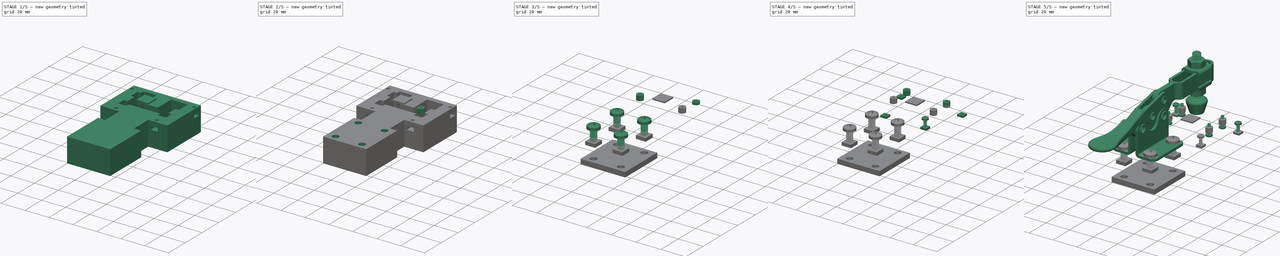
[diagram: build sequence overview — one tinted view per stage of 5, left to right]
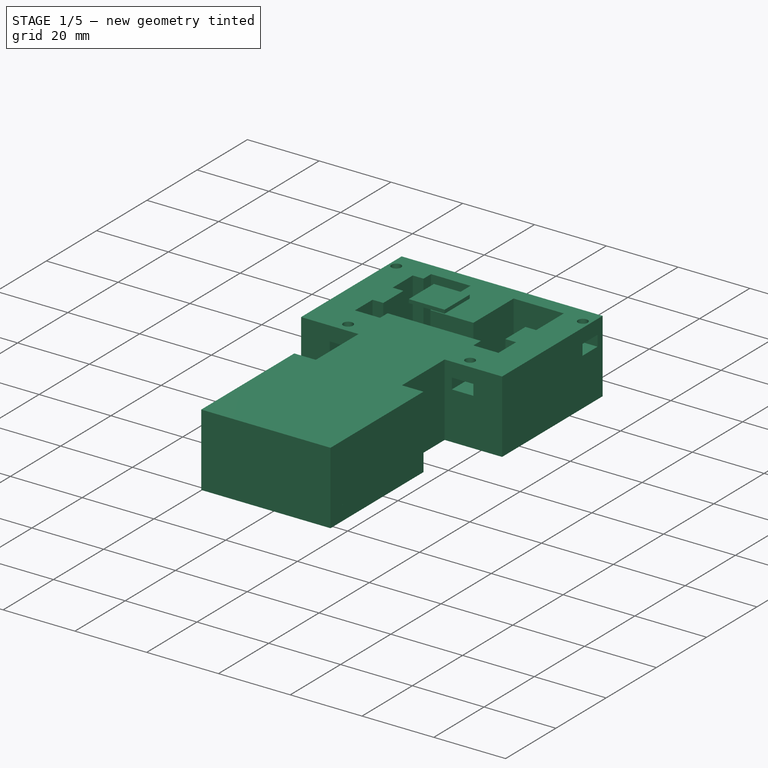
[diagram: stage 1 of 5 — iso view after this stage's code; geometry added in this stage tinted green]
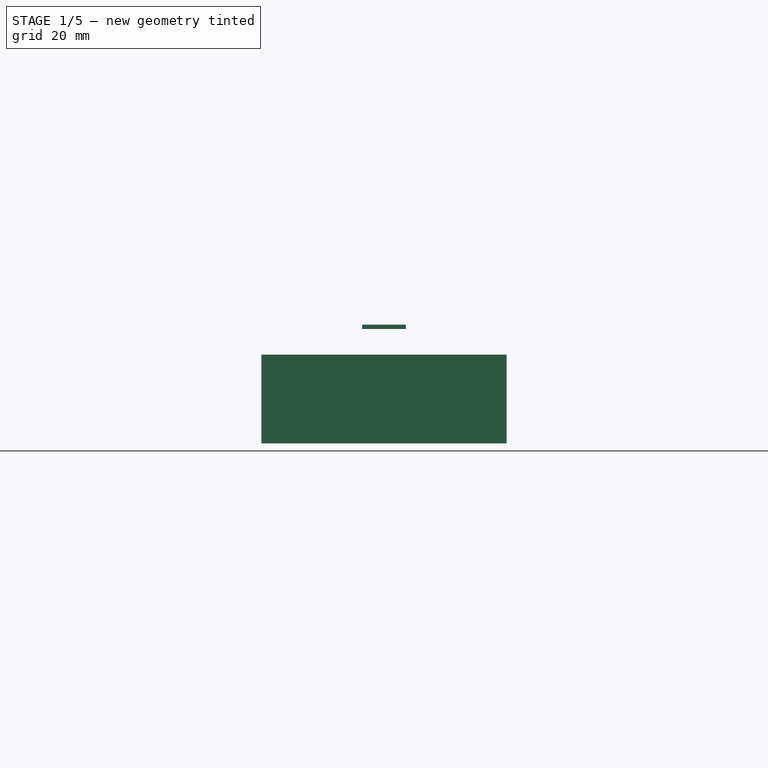
[diagram: stage 1 of 5 — front view after this stage's code; geometry added in this stage tinted green]
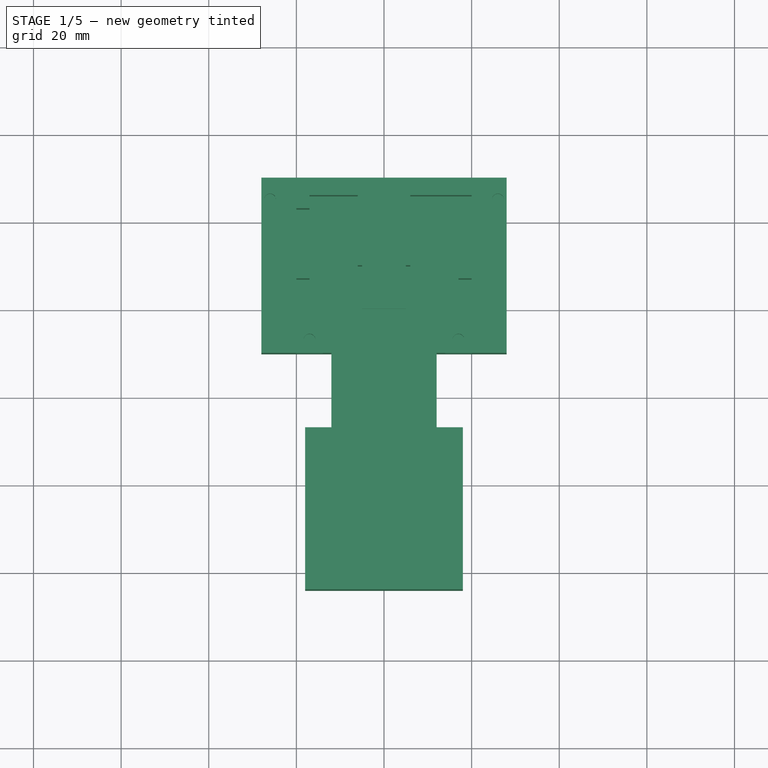
[diagram: stage 1 of 5 — top view after this stage's code; geometry added in this stage tinted green]
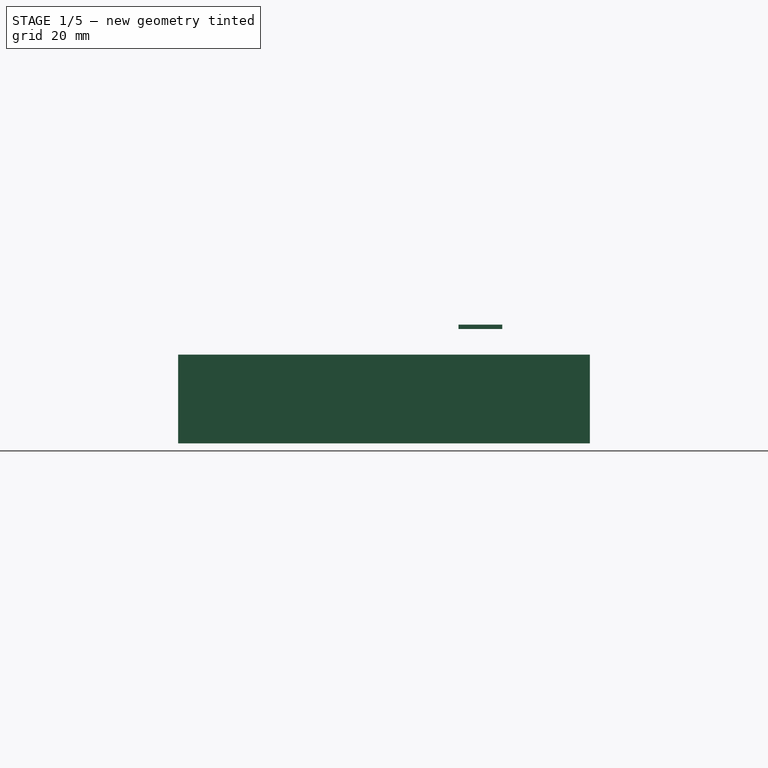
[diagram: stage 1 of 5 — right view after this stage's code; geometry added in this stage tinted green]
FCSTD DOCUMENT  (FreeCAD 0.17R13541 (Git))
Label: jig
License: All rights reserved
LicenseURL: http://en.wikipedia.org/wiki/All_rights_reserved
objects: Part::Feature×31, Part::FeaturePython×28, App::DocumentObjectGroupPython×16, Sketcher::SketchObject×11, PartDesign::Pocket×9, App::DocumentObjectGroup×4, PartDesign::Pad×2, PartDesign::Body×2, App::VRMLObject×2, Part::Compound×1, Spreadsheet::Sheet×1, Part::Box×1
note: 96 computed .brp shape members not serialized (recipe doc carries the construction recipe); baked Part::Feature solids carry a one-line shape summary decoded from their .brp

FEATURE [Sketcher::SketchObject] Sketch
  MapMode = 5
  Support = -> [XY_Plane]
  expr: Constraints[31] = Spreadsheet.ClampPos
  expr: Constraints[29] = Spreadsheet.ClampBaseX
  expr: Constraints[6] = 40 + 8 * 2
  sketch-geometry (12):
    g0: LineSegment StartX=28 StartY=30 StartZ=0 EndX=28 EndY=-10 EndZ=0
    g1: LineSegment StartX=28 StartY=-10 StartZ=0 EndX=12 EndY=-10 EndZ=0
    g2: LineSegment StartX=-28 StartY=-10 StartZ=0 EndX=-28 EndY=30 EndZ=0
    g3: LineSegment StartX=-12 StartY=-10 StartZ=0 EndX=-12 EndY=-27 EndZ=0
    g4: LineSegment StartX=-12 StartY=-27 StartZ=0 EndX=-18 EndY=-27 EndZ=0
    g5: LineSegment StartX=-18 StartY=-27 StartZ=0 EndX=-18 EndY=-64 EndZ=0
    g6: LineSegment StartX=-18 StartY=-64 StartZ=0 EndX=18 EndY=-64 EndZ=0
    g7: LineSegment StartX=18 StartY=-64 StartZ=0 EndX=18 EndY=-27 EndZ=0
    g8: LineSegment StartX=12 StartY=-27 StartZ=0 EndX=18 EndY=-27 EndZ=0
    g9: LineSegment StartX=12 StartY=-27 StartZ=0 EndX=12 EndY=-10 EndZ=0
    g10: LineSegment StartX=-12 StartY=-10 StartZ=0 EndX=-28 EndY=-10 EndZ=0
    g11: LineSegment StartX=-28 StartY=30 StartZ=0 EndX=28 EndY=30 EndZ=0
  constraints (35):
    c: Coincident(g0,g1)
    c: Coincident(g10,g2)
    c: Horizontal(g1)
    c: Vertical(g0)
    c: Vertical(g2)
    c: Symmetric(g2,g0,g-2)
    c: DistanceX(g2,g0) = 56
    c: DistanceY(g2,g2) = 40
    c: DistanceY(g0) = -10
    c: Vertical(g3)
    c: Coincident(g4,g3)
    c: Horizontal(g4)
    c: Vertical(g5)
    c: Coincident(g6,g5)
    c: Horizontal(g6)
    c: Vertical(g7)
    c: Horizontal(g8)
    c: Vertical(g9)
    c: Coincident(g1,g9)
    c: Coincident(g10,g3)
    c: Tangent(g1,g10)
    c: Symmetric(g3,g1,g-2)
    c: Coincident(g6,g7)
    c: Coincident(g7,g8)
    c: Coincident(g8,g9)
    c: Coincident(g5,g4)
    c: Horizontal(g3,g8)
    c: Equal(g8,g4)
    c: DistanceX(g3,g8) = 24
    c: DistanceX(g6,g6) = 36
    c: DistanceY(g7,g7) = 37
    c: DistanceY(g9,g9) = 17
    c: Coincident(g11,g0)
    c: Horizontal(g11)
    c: Coincident(g11,g2)
FEATURE [PartDesign::Pad] Pad
  Length = 20.25
  Length2 = 100
  Profile = -> Sketch
  Type = 0
  expr: Length = 15.25 + 5
FEATURE [Sketcher::SketchObject] Sketch001
  MapMode = 5
  Placement = pos=(0,0,20.25) rot=(0,0,1;0rad)
  Support = -> [Pad]
  sketch-geometry (22):
    g0: LineSegment StartX=20 StartY=0 StartZ=0 EndX=13 EndY=0 EndZ=0
    g1: LineSegment StartX=-20 StartY=0 StartZ=0 EndX=-20 EndY=7 EndZ=0
    g2: LineSegment StartX=-20 StartY=7 StartZ=0 EndX=-17 EndY=7 EndZ=0
    g3: LineSegment StartX=-17 StartY=15 StartZ=0 EndX=-20 EndY=15 EndZ=0
    g4: LineSegment StartX=-20 StartY=15 StartZ=0 EndX=-20 EndY=23 EndZ=0
    g5: LineSegment StartX=-20 StartY=23 StartZ=0 EndX=-17 EndY=23 EndZ=0
    g6: LineSegment StartX=20 StartY=26 StartZ=0 EndX=20 EndY=15 EndZ=0
    g7: LineSegment StartX=20 StartY=15 StartZ=0 EndX=17 EndY=15 EndZ=0
    g8: LineSegment StartX=17 StartY=7 StartZ=0 EndX=20 EndY=7 EndZ=0
    g9: LineSegment StartX=20 StartY=7 StartZ=0 EndX=20 EndY=0 EndZ=0
    g10: LineSegment StartX=-17 StartY=23 StartZ=0 EndX=-17 EndY=26 EndZ=0
    g11: LineSegment StartX=-17 StartY=7 StartZ=0 EndX=-17 EndY=15 EndZ=0
    g12: LineSegment StartX=17 StartY=15 StartZ=0 EndX=17 EndY=7 EndZ=0
    g13: LineSegment StartX=-17 StartY=26 StartZ=0 EndX=-6 EndY=26 EndZ=0
    g14: LineSegment StartX=-13 StartY=0 StartZ=0 EndX=-13 EndY=3 EndZ=0
    g15: LineSegment StartX=-13 StartY=3 StartZ=0 EndX=13 EndY=3 EndZ=0
    g16: LineSegment StartX=13 StartY=3 StartZ=0 EndX=13 EndY=0 EndZ=0
    g17: LineSegment StartX=-13 StartY=0 StartZ=0 EndX=-20 EndY=0 EndZ=0
    g18: LineSegment StartX=6 StartY=26 StartZ=0 EndX=6 EndY=10 EndZ=0
    g19: LineSegment StartX=6 StartY=10 StartZ=0 EndX=-6 EndY=10 EndZ=0
    g20: LineSegment StartX=-6 StartY=10 StartZ=0 EndX=-6 EndY=26 EndZ=0
    g21: LineSegment StartX=6 StartY=26 StartZ=0 EndX=20 EndY=26 EndZ=0
  constraints (64):
    c: Horizontal(g0)
    c: Vertical(g1)
    c: Horizontal(g2)
    c: Vertical(g4)
    c: Vertical(g6)
    c: Horizontal(g8)
    c: Vertical(g9)
    c: Horizontal(g7)
    c: Coincident(g7,g6)
    c: Coincident(g9,g8)
    c: Coincident(g1,g2)
    c: Coincident(g4,g5)
    c: Coincident(g4,g3)
    c: Horizontal(g5)
    c: Horizontal(g3)
    c: Coincident(g11,g3)
    c: Coincident(g10,g5)
    c: Coincident(g11,g2)
    c: Coincident(g17,g1)
    c: Coincident(g12,g8)
    c: Coincident(g12,g7)
    c: Coincident(g0,g9)
    c: PointOnObject(g3,g10)
    c: Vertical(g10)
    c: Vertical(g11)
    c: Equal(g8,g2)
    c: DistanceY(g1,g1) = 7
    c: Equal(g9,g1)
    c: DistanceX(g2,g2) = 3
    c: Equal(g2,g3)
    c: Equal(g8,g7)
    c: DistanceY(g0) = 0
    c: DistanceY(g11,g11) = 8
    c: DistanceY(g4,g4) = 8
    c: Equal(g11,g12)
    c: DistanceY(g6,g6) = 11
    c: Horizontal(g13)
    c: Coincident(g10,g13)
    c: Vertical(g12)
    c: Coincident(g21,g6)
    c: Symmetric(g17,g0,g-2)
    c: DistanceX(g17,g0) = 40
    c: Coincident(g15,g14)
    c: Horizontal(g15)
    c: Coincident(g16,g15)
    c: Vertical(g14)
    c: Coincident(g0,g16)
    c: Coincident(g17,g14)
    c: Tangent(g0,g17)
    c: DistanceX(g17,g17) = 7
    c: DistanceX(g0,g0) = 7
    c: Vertical(g16)
    c: DistanceY(g16,g16) = 3
    c: Coincident(g18,g19)
    c: Coincident(g19,g20)
    c: Horizontal(g19)
    c: Vertical(g18)
    c: Vertical(g20)
    c: DistanceY(g19) = 10
    c: Symmetric(g18,g19,g-2)
    c: DistanceX(g19,g19) = 12
    c: Coincident(g13,g20)
    c: Coincident(g21,g18)
    c: Tangent(g13,g21)
FEATURE [PartDesign::Pocket] Pocket
  BaseFeature = -> Pad
  Length = 17
  Length2 = 100
  Profile = -> Sketch001
  Type = 0
FEATURE [Sketcher::SketchObject] Sketch002
  MapMode = 5
  Placement = pos=(0,0,20.25) rot=(0,0,1;0rad)
  Support = -> [Pocket]
  expr: Constraints[3] = 2.7000000000000002 / 2
  sketch-geometry (4):
    g0: Circle CenterX=-17 CenterY=-7 CenterZ=0 NormalX=0 NormalY=0 NormalZ=1 AngleXU=0 Radius=1.35
    g1: Circle CenterX=17 CenterY=-7 CenterZ=0 NormalX=0 NormalY=0 NormalZ=1 AngleXU=0 Radius=1.35
    g2: Circle CenterX=26 CenterY=25 CenterZ=0 NormalX=0 NormalY=0 NormalZ=1 AngleXU=0 Radius=1.35
    g3: Circle CenterX=-26 CenterY=25 CenterZ=0 NormalX=0 NormalY=0 NormalZ=1 AngleXU=0 Radius=1.35
  constraints (11):
    c: Equal(g3,g2)
    c: Equal(g2,g1)
    c: Equal(g1,g0)
    c: Radius(g0) = 1.35
    c: DistanceY(g0) = -7
    c: Horizontal(g1,g0)
    c: DistanceX(g0,g1) = 34
    c: Symmetric(g0,g1,g-2)
    c: Symmetric(g3,g2,g-2)
    c: DistanceX(g3,g2) = 52
    c: DistanceY(g2) = 25
FEATURE [PartDesign::Pocket] Pocket001
  BaseFeature = -> Pocket
  Length = 5
  Length2 = 100
  Profile = -> Sketch002
  Type = 0
FEATURE [Sketcher::SketchObject] Sketch003
  ExternalGeometry = -> [Pocket001]
  MapMode = 5
  Placement = pos=(28,0,0) rot=(0.57735,0.57735,0.57735;2.0944rad)
  Support = -> [Pocket001]
  sketch-geometry (4):
    g0: LineSegment StartX=22 StartY=16.25 StartZ=0 EndX=28 EndY=16.25 EndZ=0
    g1: LineSegment StartX=28 StartY=16.25 StartZ=0 EndX=28 EndY=13.25 EndZ=0
    g2: LineSegment StartX=28 StartY=13.25 StartZ=0 EndX=22 EndY=13.25 EndZ=0
    g3: LineSegment StartX=22 StartY=13.25 StartZ=0 EndX=22 EndY=16.25 EndZ=0
  constraints (12):
    c: Coincident(g0,g1)
    c: Coincident(g1,g2)
    c: Coincident(g2,g3)
    c: Coincident(g3,g0)
    c: Horizontal(g0)
    c: Horizontal(g2)
    c: Vertical(g1)
    c: Vertical(g3)
    c: DistanceX(g2,g2) = 6
    c: DistanceY(g1,g1) = 3
    c: DistanceX(g2) = 22
    c: DistanceY(g0,g-3) = 4
FEATURE [PartDesign::Pocket] Pocket002
  BaseFeature = -> Pocket001
  Length = 5
  Length2 = 100
  Profile = -> Sketch003
  Type = 0
FEATURE [Sketcher::SketchObject] Sketch004
  ExternalGeometry = -> [Pocket001]
  MapMode = 5
  Placement = pos=(-28,0,0) rot=(0.57735,0.57735,0.57735;2.0944rad)
  Support = -> [Pocket002]
  sketch-geometry (4):
    g0: LineSegment StartX=22 StartY=16.25 StartZ=0 EndX=28 EndY=16.25 EndZ=0
    g1: LineSegment StartX=28 StartY=16.25 StartZ=0 EndX=28 EndY=13.25 EndZ=0
    g2: LineSegment StartX=28 StartY=13.25 StartZ=0 EndX=22 EndY=13.25 EndZ=0
    g3: LineSegment StartX=22 StartY=13.25 StartZ=0 EndX=22 EndY=16.25 EndZ=0
  constraints (12):
    c: Coincident(g0,g1)
    c: Coincident(g1,g2)
    c: Coincident(g2,g3)
    c: Coincident(g3,g0)
    c: Horizontal(g0)
    c: Horizontal(g2)
    c: Vertical(g1)
    c: Vertical(g3)
    c: DistanceX(g2,g2) = 6
    c: DistanceY(g1,g1) = 3
    c: DistanceX(g2) = 22
    c: DistanceY(g0,g-3) = 4
FEATURE [PartDesign::Pocket] Pocket003
  BaseFeature = -> Pocket002
  Length = 5
  Length2 = 100
  Profile = -> Sketch004
  Reversed = true
  Type = 0
FEATURE [Sketcher::SketchObject] Sketch005
  ExternalGeometry = -> [Pocket003]
  MapMode = 5
  Placement = pos=(0,-10,0) rot=(1,0,0;1.5708rad)
  Support = -> [Pocket003]
  sketch-geometry (8):
    g0: LineSegment StartX=-20 StartY=16.25 StartZ=0 EndX=-14 EndY=16.25 EndZ=0
    g1: LineSegment StartX=-14 StartY=16.25 StartZ=0 EndX=-14 EndY=13.25 EndZ=0
    g2: LineSegment StartX=-14 StartY=13.25 StartZ=0 EndX=-20 EndY=13.25 EndZ=0
    g3: LineSegment StartX=-20 StartY=13.25 StartZ=0 EndX=-20 EndY=16.25 EndZ=0
    g4: LineSegment StartX=14 StartY=16.25 StartZ=0 EndX=20 EndY=16.25 EndZ=0
    g5: LineSegment StartX=20 StartY=16.25 StartZ=0 EndX=20 EndY=13.25 EndZ=0
    g6: LineSegment StartX=20 StartY=13.25 StartZ=0 EndX=14 EndY=13.25 EndZ=0
    g7: LineSegment StartX=14 StartY=13.25 StartZ=0 EndX=14 EndY=16.25 EndZ=0
  constraints (24):
    c: Coincident(g0,g1)
    c: Coincident(g1,g2)
    c: Coincident(g2,g3)
    c: Coincident(g3,g0)
    c: Horizontal(g0)
    c: Horizontal(g2)
    c: Vertical(g1)
    c: Vertical(g3)
    c: Coincident(g4,g5)
    c: Coincident(g5,g6)
    c: Coincident(g6,g7)
    c: Coincident(g7,g4)
    c: Horizontal(g4)
    c: Horizontal(g6)
    c: Vertical(g5)
    c: Vertical(g7)
    c: Equal(g1,g7)
    c: Horizontal(g0,g4)
    c: DistanceY(g5,g5) = 3
    c: Equal(g2,g6)
    c: DistanceX(g6,g6) = 6
    c: DistanceY(g0,g-3) = 4
    c: DistanceX(g0) = -14
    c: Symmetric(g0,g4,g-2)
FEATURE [PartDesign::Pocket] Pocket004
  BaseFeature = -> Pocket003
  Length = 6
  Length2 = 100
  Profile = -> Sketch005
  Type = 0
FEATURE [App::DocumentObjectGroup] Group001  label="PCB Fasteners"
  Group = -> [Screw,Screw001,Screw002,Screw003,Screw004,Screw005,Screw006,Screw007,Nut,Nut001,Nut002,Nut003]
FEATURE [App::DocumentObjectGroup] Group003  label="Clamp Fasteners"
  Group = -> [Screw008,Screw009,Screw010,Screw011,Nut010,Nut011,Nut012,Nut013]
FEATURE [Sketcher::SketchObject] Sketch009
  MapMode = 5
  Support = -> [XY_Plane001]
  expr: Constraints[10] = Spreadsheet.ClampBaseX
  expr: Constraints[9] = Spreadsheet.ClampBaseY
  expr: Constraints[8] = -Spreadsheet.ClampPos - 10mm
  sketch-geometry (4):
    g0: LineSegment StartX=-18 StartY=-27 StartZ=0 EndX=18 EndY=-27 EndZ=0
    g1: LineSegment StartX=18 StartY=-27 StartZ=0 EndX=18 EndY=-64 EndZ=0
    g2: LineSegment StartX=18 StartY=-64 StartZ=0 EndX=-18 EndY=-64 EndZ=0
    g3: LineSegment StartX=-18 StartY=-64 StartZ=0 EndX=-18 EndY=-27 EndZ=0
  constraints (12):
    c: Coincident(g0,g1)
    c: Coincident(g1,g2)
    c: Coincident(g2,g3)
    c: Coincident(g3,g0)
    c: Horizontal(g0)
    c: Horizontal(g2)
    c: Vertical(g1)
    c: Vertical(g3)
    c: DistanceY(g0) = -27
    c: DistanceY(g1,g1) = 37
    c: DistanceX(g2,g2) = 36
    c: Symmetric(g0,g0,g-2)
FEATURE [PartDesign::Pad] Pad001
  Length = 4
  Length2 = 100
  Profile = -> Sketch009
  Type = 0
  expr: Length = Spreadsheet.ClampBaseHeight
FEATURE [PartDesign::Body] Body001  label="ClampSpacer"
  Group = -> [Sketch009,Pad001,Sketch010,Pocket008]
  Origin = -> Origin001
  Placement = pos=(0,0,20.25) rot=(0,0,1;0rad)
  Tip = -> Pocket008
FEATURE [Part::Box] Box001  label="TailCube"
  AttacherType = Attacher::AttachEngine3D
  Height = 1
  Length = 10
  Placement = pos=(-5,0,26.1) rot=(0,0,1;0rad)
  Width = 10
FEATURE [Part::Feature] trajectory_line
  shape: bbox 22 x 27 x 80 mm, 0 faces, 0 solids (baked)
FEATURE [App::DocumentObjectGroupPython] BoltGroup  # scripted group (container) (typed FeaturePython)
  AnimationStepTime = 0
  AnimationSteps = 20
  Distance = 80
  Group = -> [trajectory_line]
  Revolutions = 0
FEATURE [Part::Feature] trajectory_line001
  shape: bbox 2e-07 x 2e-07 x 60 mm, 0 faces, 0 solids (baked)
FEATURE [App::DocumentObjectGroupPython] SimpleGroup  label="SimpleGroupClamp"  # scripted group (container) (typed FeaturePython)
  AnimationStepTime = 0
  AnimationSteps = 20
  Distance = 60
  Group = -> [trajectory_line001]
  Revolutions = 0
FEATURE [Part::Feature] trajectory_line002
  shape: bbox 20 x 2e-07 x 2e-07 mm, 0 faces, 0 solids (baked)
FEATURE [App::DocumentObjectGroupPython] SimpleGroup001  label="SimpleGroupNuts1"  # scripted group (container) (typed FeaturePython)
  AnimationStepTime = 0
  AnimationSteps = 20
  Distance = 20
  Group = -> [trajectory_line002]
  Revolutions = 0
FEATURE [Part::Feature] trajectory_line003
  shape: bbox 20 x 2e-07 x 2e-07 mm, 0 faces, 0 solids (baked)
FEATURE [App::DocumentObjectGroupPython] SimpleGroup002  label="SimpleGroupNuts2"  # scripted group (container) (typed FeaturePython)
  AnimationStepTime = 0
  AnimationSteps = 20
  Distance = 20
  Group = -> [trajectory_line003]
  Revolutions = 0
FEATURE [Part::Feature] trajectory_line004
  shape: bbox 2e-07 x 2e-07 x 20 mm, 0 faces, 0 solids (baked)
FEATURE [App::DocumentObjectGroupPython] SimpleGroup003  label="SimpleGroupSpacer"  # scripted group (container) (typed FeaturePython)
  AnimationStepTime = 0
  AnimationSteps = 20
  Distance = 20
  Group = -> [trajectory_line004]
  Revolutions = 0
FEATURE [Part::Feature] trajectory_line005
  shape: bbox 2e-07 x 2e-07 x 20 mm, 0 faces, 0 solids (baked)
FEATURE [App::DocumentObjectGroupPython] SimpleGroup004  label="SimpleGroupTail"  # scripted group (container) (typed FeaturePython)
  AnimationStepTime = 0
  AnimationSteps = 20
  Distance = 20
  Group = -> [trajectory_line005]
  Revolutions = 0
FEATURE [Part::Feature] trajectory_line006
  shape: bbox 2e-07 x 60 x 2e-07 mm, 0 faces, 0 solids (baked)
FEATURE [App::DocumentObjectGroupPython] SimpleGroup005  label="SimpleGroupTailSecondMove"  # scripted group (container) (typed FeaturePython)
  AnimationStepTime = 0
  AnimationSteps = 20
  Distance = 60
  Group = -> [trajectory_line006]
  Revolutions = 0
FEATURE [Part::Feature] trajectory_line007
  shape: bbox 52 x 32 x 60 mm, 0 faces, 0 solids (baked)
FEATURE [App::DocumentObjectGroupPython] BoltGroup001  label="BoltGroupJigBolts"  # scripted group (container) (typed FeaturePython)
  AnimationStepTime = 0
  AnimationSteps = 20
  Distance = 60
  Group = -> [trajectory_line007]
  Revolutions = 0
FEATURE [Part::Feature] trajectory_line008
  shape: bbox 2e-07 x 2e-07 x 30 mm, 0 faces, 0 solids (baked)
FEATURE [App::DocumentObjectGroupPython] SimpleGroup006  label="SimpleGroupJig"  # scripted group (container) (typed FeaturePython)
  AnimationStepTime = 0
  AnimationSteps = 20
  Distance = 30
  Group = -> [trajectory_line008]
  Revolutions = 0
FEATURE [Part::Feature] trajectory_line009
  shape: bbox 34 x 16 x 15 mm, 0 faces, 0 solids (baked)
FEATURE [App::DocumentObjectGroupPython] BoltGroup002  label="BoltGroupSpacerNuts1"  # scripted group (container) (typed FeaturePython)
  AnimationStepTime = 0
  AnimationSteps = 20
  Distance = 15
  Group = -> [trajectory_line009]
  Revolutions = 0
FEATURE [Part::Feature] trajectory_line010
  shape: bbox 34 x 16 x 10 mm, 0 faces, 0 solids (baked)
FEATURE [App::DocumentObjectGroupPython] BoltGroup003  label="BoltGroupSpacerNuts2"  # scripted group (container) (typed FeaturePython)
  AnimationStepTime = 0
  AnimationSteps = 20
  Distance = 10
  Group = -> [trajectory_line010]
  Revolutions = 0
FEATURE [Part::Feature] trajectory_line011
  shape: bbox 34 x 16 x 20 mm, 0 faces, 0 solids (baked)
FEATURE [App::DocumentObjectGroupPython] BoltGroup004  label="BoltGroupTailBolts"  # scripted group (container) (typed FeaturePython)
  AnimationStepTime = 0
  AnimationSteps = 20
  Distance = 20
  Group = -> [trajectory_line011]
  Revolutions = 0
FEATURE [Part::Feature] trajectory_line012
  shape: bbox 20 x 2e-07 x 2e-07 mm, 0 faces, 0 solids (baked)
FEATURE [App::DocumentObjectGroupPython] SimpleGroup007  label="SimpleGroupSideNut1"  # scripted group (container) (typed FeaturePython)
  AnimationStepTime = 0
  AnimationSteps = 20
  Distance = 20
  Group = -> [trajectory_line012]
  Revolutions = 0
FEATURE [Part::Feature] trajectory_line013
  shape: bbox 20 x 2e-07 x 2e-07 mm, 0 faces, 0 solids (baked)
FEATURE [App::DocumentObjectGroupPython] SimpleGroup008  label="SimpleGroupSideNut2"  # scripted group (container) (typed FeaturePython)
  AnimationStepTime = 0
  AnimationSteps = 20
  Distance = 20
  Group = -> [trajectory_line013]
  Revolutions = 0
FEATURE [Part::Feature] trajectory_line014
  shape: bbox 2e-07 x 20 x 2e-07 mm, 0 faces, 0 solids (baked)
FEATURE [App::DocumentObjectGroupPython] SimpleGroup009  label="SimpleGroupFrontNuts"  # scripted group (container) (typed FeaturePython)
  AnimationStepTime = 0
  AnimationSteps = 20
  Distance = 12
  Group = -> [trajectory_line014]
  Revolutions = 0
FEATURE [App::DocumentObjectGroupPython] ExplodedAssembly  # scripted group (container) (typed FeaturePython)
  AnimationStep = 0
  CurrentTrajectory = 0
  Group = -> [BoltGroup,SimpleGroup,SimpleGroup004,SimpleGroup005,SimpleGroup001,SimpleGroup002,SimpleGroup003,BoltGroup001,SimpleGroup007,SimpleGroup008,SimpleGroup009,SimpleGroup006,BoltGroup002,BoltGroup003,BoltGroup004]
  InAnimation = false
  RemoveAllTrajectories = false
  ResetAnimation = false
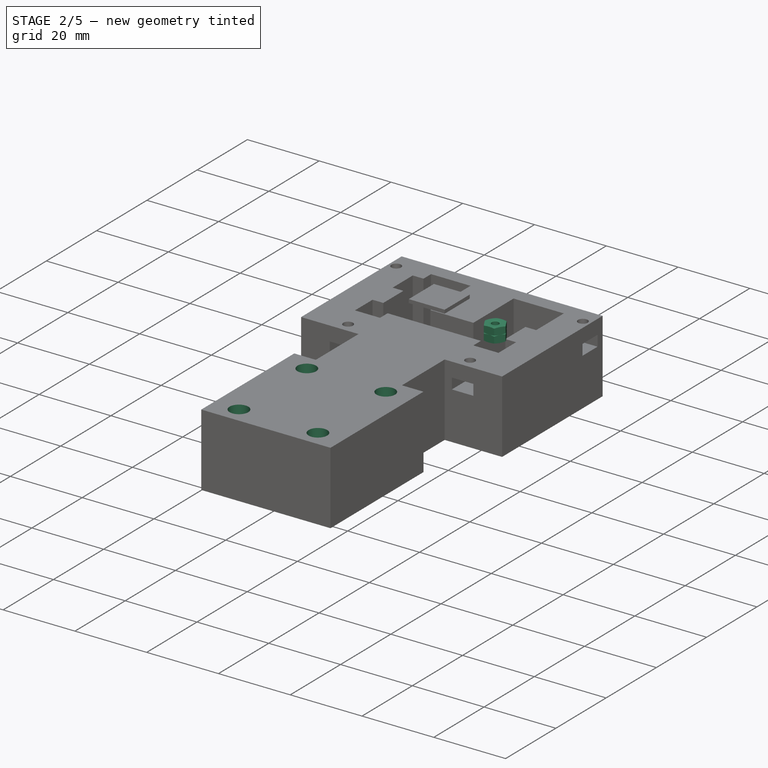
[diagram: stage 2 of 5 — iso view after this stage's code; geometry added in this stage tinted green]
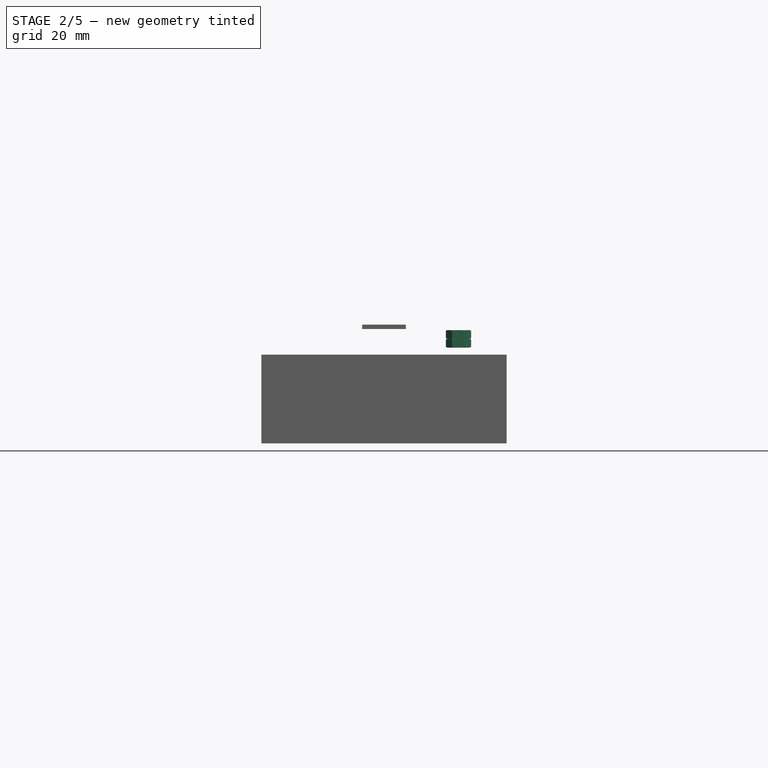
[diagram: stage 2 of 5 — front view after this stage's code; geometry added in this stage tinted green]
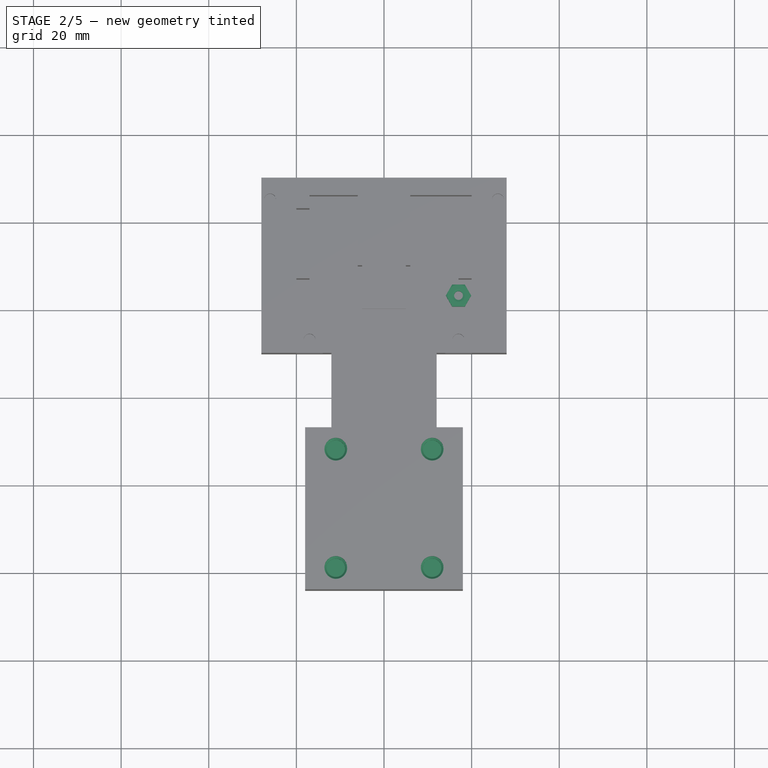
[diagram: stage 2 of 5 — top view after this stage's code; geometry added in this stage tinted green]
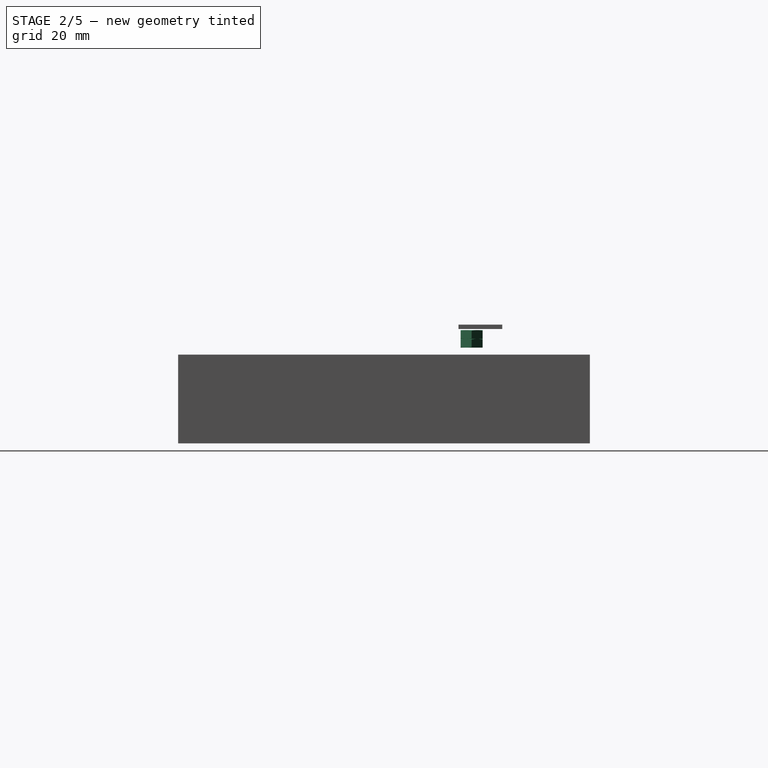
[diagram: stage 2 of 5 — right view after this stage's code; geometry added in this stage tinted green]
FEATURE [Sketcher::SketchObject] Sketch006
  ExternalGeometry = -> [Pocket004]
  MapMode = 5
  Placement = pos=(0,0,20.25) rot=(0,0,1;0rad)
  Support = -> [Pocket004]
  expr: Constraints[10] = (Spreadsheet.ClampBaseY - Spreadsheet.ClampHolesY) / 2
  expr: Constraints[8] = Spreadsheet.ClampHolesX
  expr: Constraints[9] = Spreadsheet.ClampHolesY
  expr: Constraints[11] = 5.2000000000000002 / 2
  sketch-geometry (4):
    g0: Circle CenterX=-11 CenterY=-32 CenterZ=0 NormalX=0 NormalY=0 NormalZ=1 AngleXU=0 Radius=2.6
    g1: Circle CenterX=11 CenterY=-32 CenterZ=0 NormalX=0 NormalY=0 NormalZ=1 AngleXU=0 Radius=2.6
    g2: Circle CenterX=-11 CenterY=-59 CenterZ=0 NormalX=0 NormalY=0 NormalZ=1 AngleXU=0 Radius=2.6
    g3: Circle CenterX=11 CenterY=-59 CenterZ=0 NormalX=0 NormalY=0 NormalZ=1 AngleXU=0 Radius=2.6
  constraints (12):
    c: Equal(g0,g1)
    c: Equal(g1,g2)
    c: Equal(g2,g3)
    c: Horizontal(g0,g1)
    c: Horizontal(g2,g3)
    c: Vertical(g1,g3)
    c: Vertical(g0,g2)
    c: Symmetric(g0,g1,g-2)
    c: DistanceX(g2,g3) = 22
    c: DistanceY(g3,g1) = 27
    c: DistanceY(g-3,g3) = 5
    c: Radius(g0) = 2.6
FEATURE [PartDesign::Pocket] Pocket005
  BaseFeature = -> Pocket004
  Length = 5
  Length2 = 100
  Profile = -> Sketch006
  Type = 0
  expr: Length = 9mm - Spreadsheet.ClampBaseHeight
FEATURE [Part::FeaturePython] Nut010  label="M5-Nut"  # Fasteners workbench fastener (typed FeaturePython)
  Placement = pos=(-11,-32,14.55) rot=(0,0,1;0rad)
  diameter = 6
  invert = false
  matchOuter = false
  offset = 0.3
  thread = false
  type = 1
FEATURE [Part::FeaturePython] Nut011  label="M5-Nut350"  # Fasteners workbench fastener (typed FeaturePython)
  Placement = pos=(-11,-59,14.55) rot=(0,0,1;0rad)
  diameter = 6
  invert = false
  matchOuter = false
  offset = 0.3
  thread = false
  type = 1
FEATURE [Part::FeaturePython] Nut012  label="M5-Nut349"  # Fasteners workbench fastener (typed FeaturePython)
  Placement = pos=(11,-32,14.55) rot=(0,0,1;0rad)
  diameter = 6
  invert = false
  matchOuter = false
  offset = 0.3
  thread = false
  type = 1
FEATURE [Part::FeaturePython] Nut013  label="M5-Nut348"  # Fasteners workbench fastener (typed FeaturePython)
  Placement = pos=(11,-59,14.55) rot=(0,0,1;0rad)
  diameter = 6
  invert = false
  matchOuter = false
  offset = 0.3
  thread = false
  type = 1
FEATURE [Part::FeaturePython] Nut014  label="M2.5-Nut275"  # Fasteners workbench fastener (typed FeaturePython)
  Placement = pos=(17,3,23.85) rot=(0,0,1;0rad)
  diameter = 3
  invert = false
  matchOuter = false
  offset = 0
  thread = false
  type = 4
FEATURE [Part::FeaturePython] Nut015  label="M2.5-Nut"  # Fasteners workbench fastener (typed FeaturePython)
  Placement = pos=(17,3,21.85) rot=(0,0,1;0rad)
  diameter = 3
  invert = false
  matchOuter = false
  offset = 0
  thread = false
  type = 4
FEATURE [App::DocumentObjectGroup] Group002  label="PCB Spacers"
  Group = -> [Nut004,Nut005,Nut006,Nut007,Nut008,Nut009,Nut014,Nut015]
FEATURE [Sketcher::SketchObject] Sketch010
  ExternalGeometry = -> [Pocket004]
  MapMode = 5
  Placement = pos=(0,0,4) rot=(0,0,1;0rad)
  Support = -> [Pad001]
  expr: Constraints[10] = (Spreadsheet.ClampBaseY - Spreadsheet.ClampHolesY) / 2
  expr: Constraints[8] = Spreadsheet.ClampHolesX
  expr: Constraints[9] = Spreadsheet.ClampHolesY
  expr: Constraints[11] = 5.2000000000000002 / 2
  sketch-geometry (4):
    g0: Circle CenterX=-11 CenterY=-32 CenterZ=0 NormalX=0 NormalY=0 NormalZ=1 AngleXU=0 Radius=2.6
    g1: Circle CenterX=11 CenterY=-32 CenterZ=0 NormalX=0 NormalY=0 NormalZ=1 AngleXU=0 Radius=2.6
    g2: Circle CenterX=-11 CenterY=-59 CenterZ=0 NormalX=0 NormalY=0 NormalZ=1 AngleXU=0 Radius=2.6
    g3: Circle CenterX=11 CenterY=-59 CenterZ=0 NormalX=0 NormalY=0 NormalZ=1 AngleXU=0 Radius=2.6
  constraints (12):
    c: Equal(g0,g1)
    c: Equal(g1,g2)
    c: Equal(g2,g3)
    c: Horizontal(g0,g1)
    c: Horizontal(g2,g3)
    c: Vertical(g1,g3)
    c: Vertical(g0,g2)
    c: Symmetric(g0,g1,g-2)
    c: DistanceX(g2,g3) = 22
    c: DistanceY(g3,g1) = 27
    c: DistanceY(g-3,g3) = 5
    c: Radius(g0) = 2.6
FEATURE [PartDesign::Pocket] Pocket008
  BaseFeature = -> Pad001
  Length = 4
  Length2 = 100
  Profile = -> Sketch010
  Type = 0
  expr: Length = Spreadsheet.ClampBaseHeight
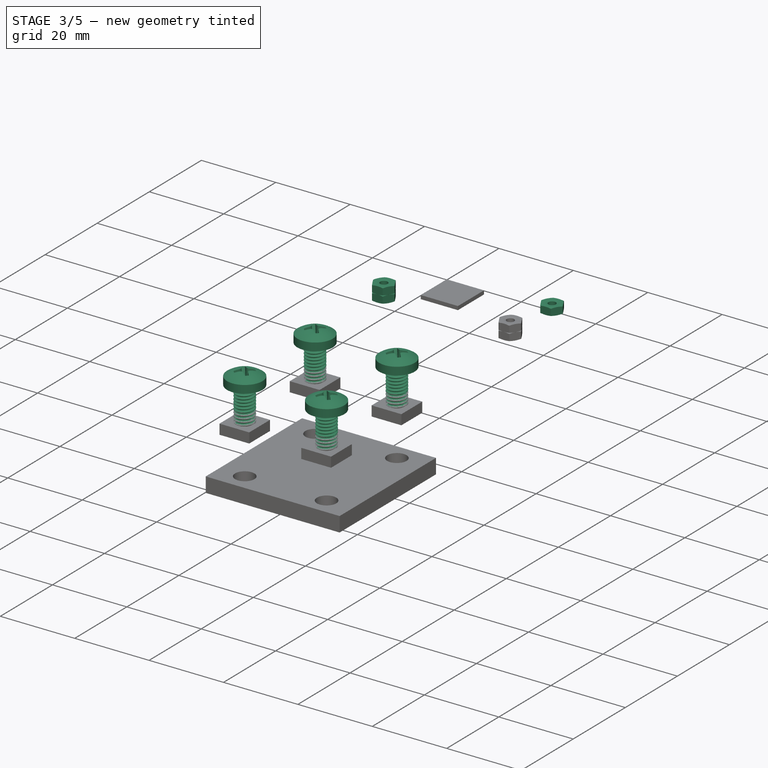
[diagram: stage 3 of 5 — iso view after this stage's code; geometry added in this stage tinted green]
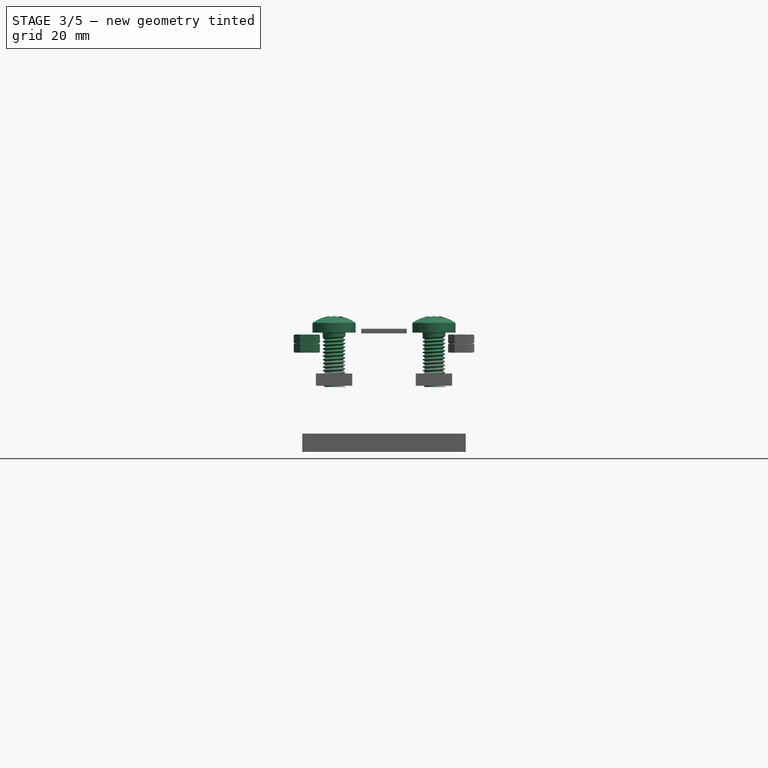
[diagram: stage 3 of 5 — front view after this stage's code; geometry added in this stage tinted green]
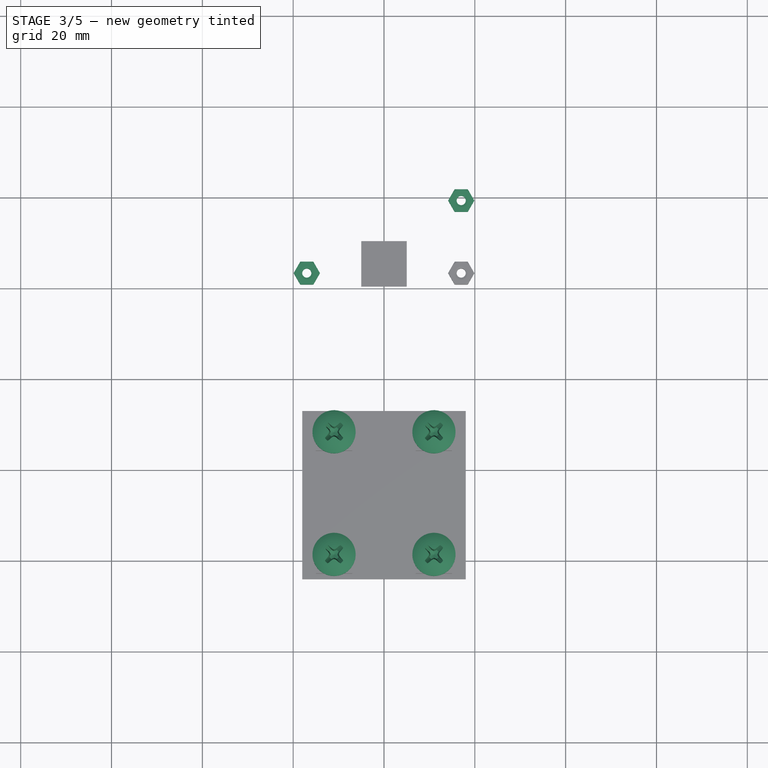
[diagram: stage 3 of 5 — top view after this stage's code; geometry added in this stage tinted green]
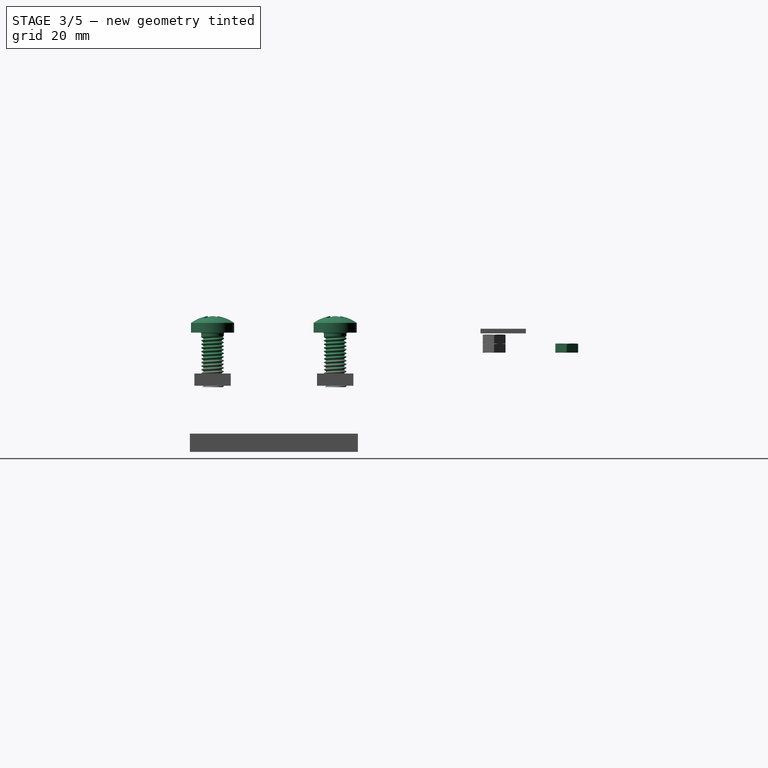
[diagram: stage 3 of 5 — right view after this stage's code; geometry added in this stage tinted green]
FEATURE [Sketcher::SketchObject] Sketch007
  ExternalGeometry = -> [Pocket005]
  MapMode = 5
  Placement = pos=(18,0,0) rot=(0.57735,0.57735,0.57735;2.0944rad)
  Support = -> [Pocket005]
  expr: Constraints[20] = Spreadsheet.ClampNutHeight
  expr: Constraints[22] = (Spreadsheet.ClampBaseY - Spreadsheet.ClampHolesY - Spreadsheet.ClampNutWidth) / 2
  expr: Constraints[21] = Spreadsheet.ClampNutWidth
  expr: Constraints[19] = 7mm - Spreadsheet.ClampBaseHeight
  expr: Constraints[23] = Spreadsheet.ClampHolesY
  sketch-geometry (8):
    g0: LineSegment StartX=-63.5 StartY=17.25 StartZ=0 EndX=-54.5 EndY=17.25 EndZ=0
    g1: LineSegment StartX=-54.5 StartY=17.25 StartZ=0 EndX=-54.5 EndY=13.25 EndZ=0
    g2: LineSegment StartX=-54.5 StartY=13.25 StartZ=0 EndX=-63.5 EndY=13.25 EndZ=0
    g3: LineSegment StartX=-63.5 StartY=13.25 StartZ=0 EndX=-63.5 EndY=17.25 EndZ=0
    g4: LineSegment StartX=-36.5 StartY=17.25 StartZ=0 EndX=-27.5 EndY=17.25 EndZ=0
    g5: LineSegment StartX=-27.5 StartY=17.25 StartZ=0 EndX=-27.5 EndY=13.25 EndZ=0
    g6: LineSegment StartX=-27.5 StartY=13.25 StartZ=0 EndX=-36.5 EndY=13.25 EndZ=0
    g7: LineSegment StartX=-36.5 StartY=13.25 StartZ=0 EndX=-36.5 EndY=17.25 EndZ=0
  constraints (24):
    c: Coincident(g0,g1)
    c: Coincident(g1,g2)
    c: Coincident(g2,g3)
    c: Coincident(g3,g0)
    c: Horizontal(g0)
    c: Horizontal(g2)
    c: Vertical(g1)
    c: Vertical(g3)
    c: Coincident(g4,g5)
    c: Coincident(g5,g6)
    c: Coincident(g6,g7)
    c: Coincident(g7,g4)
    c: Horizontal(g4)
    c: Horizontal(g6)
    c: Vertical(g5)
    c: Vertical(g7)
    c: Horizontal(g0,g4)
    c: Horizontal(g1,g6)
    c: Equal(g6,g2)
    c: DistanceY(g0,g-3) = 3
    c: DistanceY(g1,g1) = 4
    c: DistanceX(g6,g6) = 9
    c: DistanceX(g-3,g0) = 0.5
    c: DistanceX(g1,g5) = 27
FEATURE [PartDesign::Pocket] Pocket006
  BaseFeature = -> Pocket005
  Length = 10.25
  Length2 = 100
  Profile = -> Sketch007
  Type = 0
  expr: Length = 6.25 + 4
FEATURE [Sketcher::SketchObject] Sketch008
  ExternalGeometry = -> [Pocket005]
  MapMode = 5
  Placement = pos=(-18,0,0) rot=(0.57735,0.57735,0.57735;2.0944rad)
  Support = -> [Pocket005]
  expr: Constraints[22] = (Spreadsheet.ClampBaseY - Spreadsheet.ClampHolesY - Spreadsheet.ClampNutWidth) / 2
  expr: Constraints[20] = Spreadsheet.ClampNutHeight
  expr: Constraints[21] = Spreadsheet.ClampNutWidth
  expr: Constraints[19] = 7mm - Spreadsheet.ClampBaseHeight
  expr: Constraints[23] = Spreadsheet.ClampHolesY
  sketch-geometry (8):
    g0: LineSegment StartX=-63.5 StartY=17.25 StartZ=0 EndX=-54.5 EndY=17.25 EndZ=0
    g1: LineSegment StartX=-54.5 StartY=17.25 StartZ=0 EndX=-54.5 EndY=13.25 EndZ=0
    g2: LineSegment StartX=-54.5 StartY=13.25 StartZ=0 EndX=-63.5 EndY=13.25 EndZ=0
    g3: LineSegment StartX=-63.5 StartY=13.25 StartZ=0 EndX=-63.5 EndY=17.25 EndZ=0
    g4: LineSegment StartX=-36.5 StartY=17.25 StartZ=0 EndX=-27.5 EndY=17.25 EndZ=0
    g5: LineSegment StartX=-27.5 StartY=17.25 StartZ=0 EndX=-27.5 EndY=13.25 EndZ=0
    g6: LineSegment StartX=-27.5 StartY=13.25 StartZ=0 EndX=-36.5 EndY=13.25 EndZ=0
    g7: LineSegment StartX=-36.5 StartY=13.25 StartZ=0 EndX=-36.5 EndY=17.25 EndZ=0
  constraints (24):
    c: Coincident(g0,g1)
    c: Coincident(g1,g2)
    c: Coincident(g2,g3)
    c: Coincident(g3,g0)
    c: Horizontal(g0)
    c: Horizontal(g2)
    c: Vertical(g1)
    c: Vertical(g3)
    c: Coincident(g4,g5)
    c: Coincident(g5,g6)
    c: Coincident(g6,g7)
    c: Coincident(g7,g4)
    c: Horizontal(g4)
    c: Horizontal(g6)
    c: Vertical(g5)
    c: Vertical(g7)
    c: Horizontal(g0,g4)
    c: Horizontal(g1,g6)
    c: Equal(g6,g2)
    c: DistanceY(g0,g-3) = 3
    c: DistanceY(g1,g1) = 4
    c: DistanceX(g6,g6) = 9
    c: DistanceX(g-3,g0) = 0.5
    c: DistanceX(g1,g5) = 27
FEATURE [PartDesign::Pocket] Pocket007
  BaseFeature = -> Pocket006
  Length = 10.25
  Length2 = 100
  Profile = -> Sketch008
  Reversed = true
  Type = 0
  expr: Length = 6.25 + 4
FEATURE [Part::FeaturePython] Nut007  label="M2.5-Nut281"  # Fasteners workbench fastener (typed FeaturePython)
  Placement = pos=(17,19,21.85) rot=(0,0,1;0rad)
  diameter = 3
  invert = false
  matchOuter = false
  offset = 0
  thread = false
  type = 4
FEATURE [Part::FeaturePython] Nut008  label="M2.5-Nut280"  # Fasteners workbench fastener (typed FeaturePython)
  Placement = pos=(-17,3,23.85) rot=(0,0,1;0rad)
  diameter = 3
  invert = false
  matchOuter = false
  offset = 0
  thread = false
  type = 4
FEATURE [Part::FeaturePython] Nut009  label="M2.5-Nut283"  # Fasteners workbench fastener (typed FeaturePython)
  Placement = pos=(-17,3,21.85) rot=(0,0,1;0rad)
  diameter = 3
  invert = false
  matchOuter = false
  offset = 0
  thread = false
  type = 4
FEATURE [App::VRMLObject] tail
  Placement = pos=(-150,100,26.65) rot=(0,0,1;0rad)
  Resources = tail/shapes3D/C_0603.wrl | tail/shapes3D/LED_0603.wrl | tail/shapes3D/R_0603.wrl | tail/shapes3D/SOT-23-5.wrl
  expr: Placement.Base.z = 20.25mm + 4mm + 1.6000000000000001mm + 1.6000000000000001mm / 2
FEATURE [Part::FeaturePython] Screw008  label="M5x12-Screw412"  # Fasteners workbench fastener (typed FeaturePython)
  Placement = pos=(11,-32,26.25) rot=(0,0,1;0rad)
  baseObject = -> Body [Edge59]
  diameter = 7
  invert = false
  length = 3
  matchOuter = false
  offset = 6
  thread = true
  type = 16
  expr: offset = 2mm + Spreadsheet.ClampBaseHeight
FEATURE [Part::FeaturePython] Screw009  label="M5x12-Screw"  # Fasteners workbench fastener (typed FeaturePython)
  Placement = pos=(-11,-32,26.25) rot=(0,0,1;0rad)
  baseObject = -> Body [Edge58]
  diameter = 7
  invert = false
  length = 3
  matchOuter = false
  offset = 6
  thread = true
  type = 16
  expr: offset = 2mm + Spreadsheet.ClampBaseHeight
FEATURE [Part::FeaturePython] Screw010  label="M5x12-Screw413"  # Fasteners workbench fastener (typed FeaturePython)
  Placement = pos=(-11,-59,26.25) rot=(0,0,1;0rad)
  baseObject = -> Body [Edge56]
  diameter = 7
  invert = false
  length = 3
  matchOuter = false
  offset = 6
  thread = true
  type = 16
  expr: offset = 2mm + Spreadsheet.ClampBaseHeight
FEATURE [Part::FeaturePython] Screw011  label="M5x12-Screw411"  # Fasteners workbench fastener (typed FeaturePython)
  Placement = pos=(11,-59,26.25) rot=(0,0,1;0rad)
  baseObject = -> Body [Edge57]
  diameter = 7
  invert = false
  length = 3
  matchOuter = false
  offset = 6
  thread = true
  type = 16
  expr: offset = 2mm + Spreadsheet.ClampBaseHeight
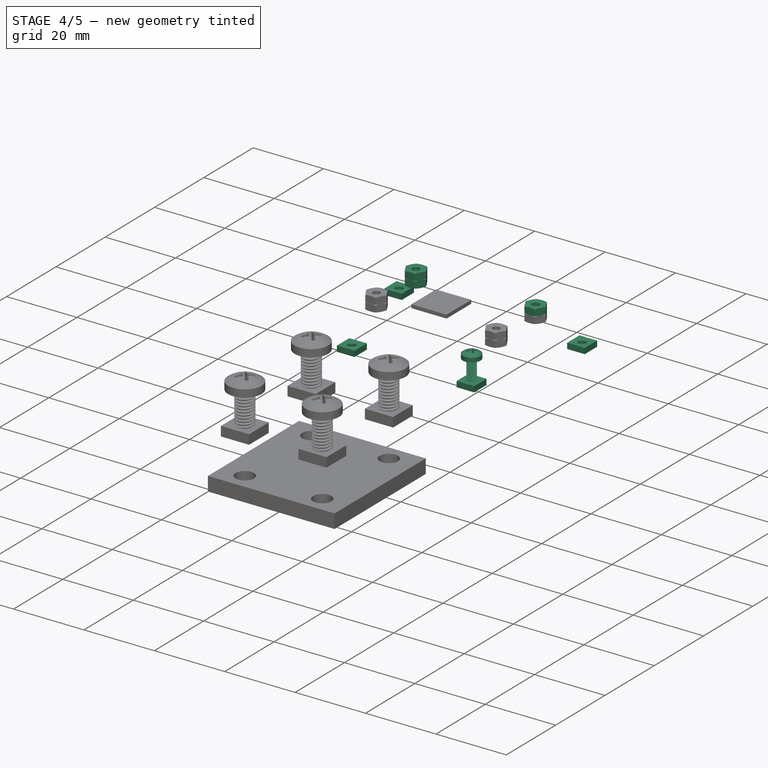
[diagram: stage 4 of 5 — iso view after this stage's code; geometry added in this stage tinted green]
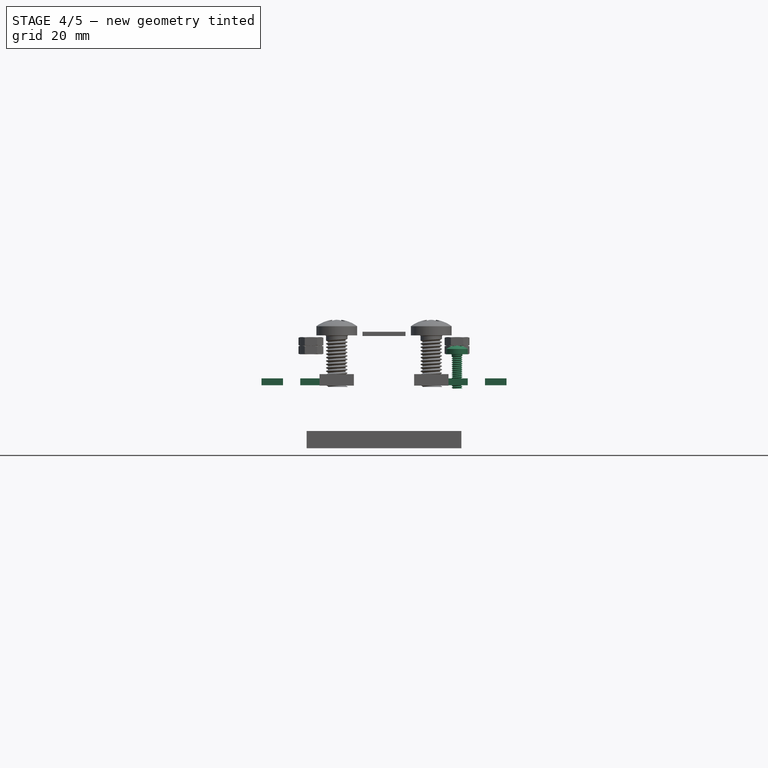
[diagram: stage 4 of 5 — front view after this stage's code; geometry added in this stage tinted green]
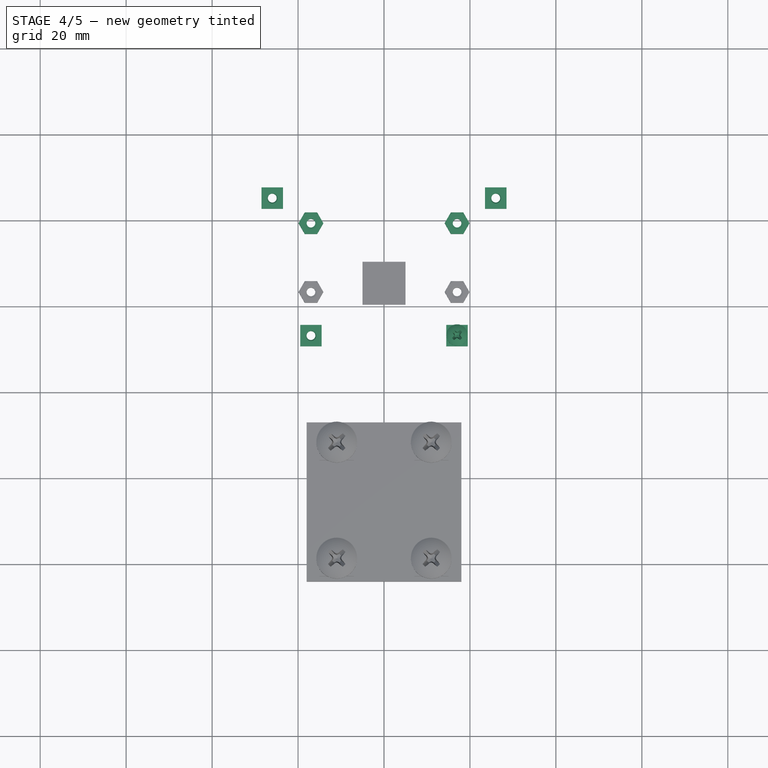
[diagram: stage 4 of 5 — top view after this stage's code; geometry added in this stage tinted green]
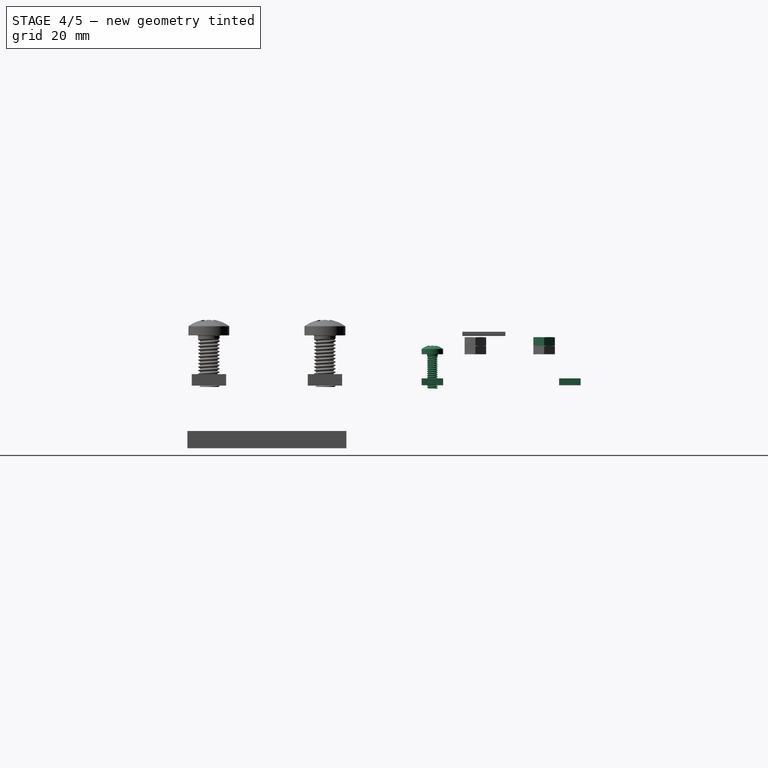
[diagram: stage 4 of 5 — right view after this stage's code; geometry added in this stage tinted green]
FEATURE [Part::FeaturePython] Screw007  label="M2.5x8-Screw232"  # Fasteners workbench fastener (typed FeaturePython)
  Placement = pos=(17,-7,21.85) rot=(0,0,1;0rad)
  diameter = 3
  invert = false
  length = 4
  matchOuter = false
  offset = 0
  thread = true
  type = 16
FEATURE [Part::FeaturePython] Nut  label="M2.5-Nut278"  # Fasteners workbench fastener (typed FeaturePython)
  Placement = pos=(-26,25,14.65) rot=(0,0,1;0rad)
  diameter = 3
  invert = false
  matchOuter = false
  offset = 0
  thread = true
  type = 1
FEATURE [Part::FeaturePython] Nut001  label="M2.5-Nut276"  # Fasteners workbench fastener (typed FeaturePython)
  Placement = pos=(26,25,14.65) rot=(0,0,1;0rad)
  diameter = 3
  invert = false
  matchOuter = false
  offset = 0
  thread = true
  type = 1
FEATURE [Part::FeaturePython] Nut002  label="M2.5-Nut277"  # Fasteners workbench fastener (typed FeaturePython)
  Placement = pos=(-17,-7,14.65) rot=(0,0,1;0rad)
  diameter = 3
  invert = false
  matchOuter = false
  offset = 0
  thread = true
  type = 1
FEATURE [Part::FeaturePython] Nut003  label="M2.5-Nut279"  # Fasteners workbench fastener (typed FeaturePython)
  Placement = pos=(17,-7,14.65) rot=(0,0,1;0rad)
  diameter = 3
  invert = false
  matchOuter = false
  offset = 0
  thread = true
  type = 1
FEATURE [Spreadsheet::Sheet] Spreadsheet
  cells = A1=Clamp dimensions; D1=Amazon set; E1=Goodhands set; A3=Distance from baseline; B3(ClampPos)==17mm; D3==17mm; E3==17mm; A5=Base X; B5(ClampBaseX)==36mm; D5==32mm; E5==36mm; A6=Base Y; B6(ClampBaseY)==37mm; D6==37mm; E6==37mm; A8=Holes X; B8(ClampHolesX)==22mm; D8==19.5mm; E8==22mm; A9=Holes Y; B9(ClampHolesY)==27mm; D9==27mm; E9==27mm; A12=Nut holes for clamp; A14=Width; B14(ClampNutWidth)==9mm; A15=Height; B15(ClampNutHeight)==4mm; A17=Clamp Height Offset; B17(ClampHeightOffset)==2mm; A18=Clamp Base Height; B18(ClampBaseHeight)==4mm
FEATURE [Part::FeaturePython] Nut004  label="M2.5-Nut284"  # Fasteners workbench fastener (typed FeaturePython)
  Placement = pos=(-17,19,23.85) rot=(0,0,1;0rad)
  diameter = 3
  invert = false
  matchOuter = false
  offset = 0
  thread = false
  type = 4
FEATURE [Part::FeaturePython] Nut005  label="M2.5-Nut282"  # Fasteners workbench fastener (typed FeaturePython)
  Placement = pos=(-17,19,21.85) rot=(0,0,1;0rad)
  diameter = 3
  invert = false
  matchOuter = false
  offset = 0
  thread = false
  type = 4
FEATURE [Part::FeaturePython] Nut006  label="M2.5-Nut274"  # Fasteners workbench fastener (typed FeaturePython)
  Placement = pos=(17,19,23.85) rot=(0,0,1;0rad)
  diameter = 3
  invert = false
  matchOuter = false
  offset = 0
  thread = false
  type = 4
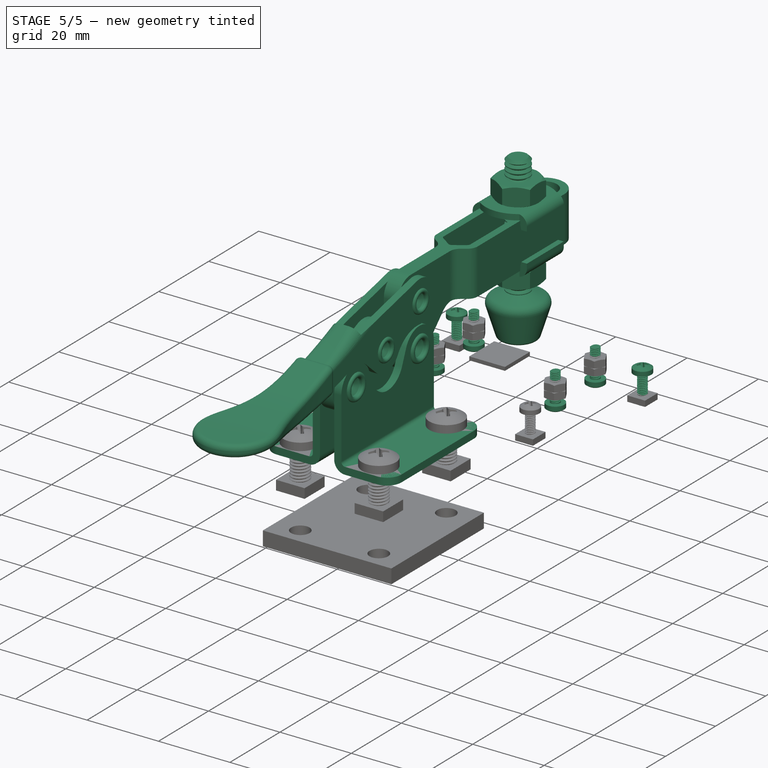
[diagram: stage 5 of 5 — iso view after this stage's code; geometry added in this stage tinted green]
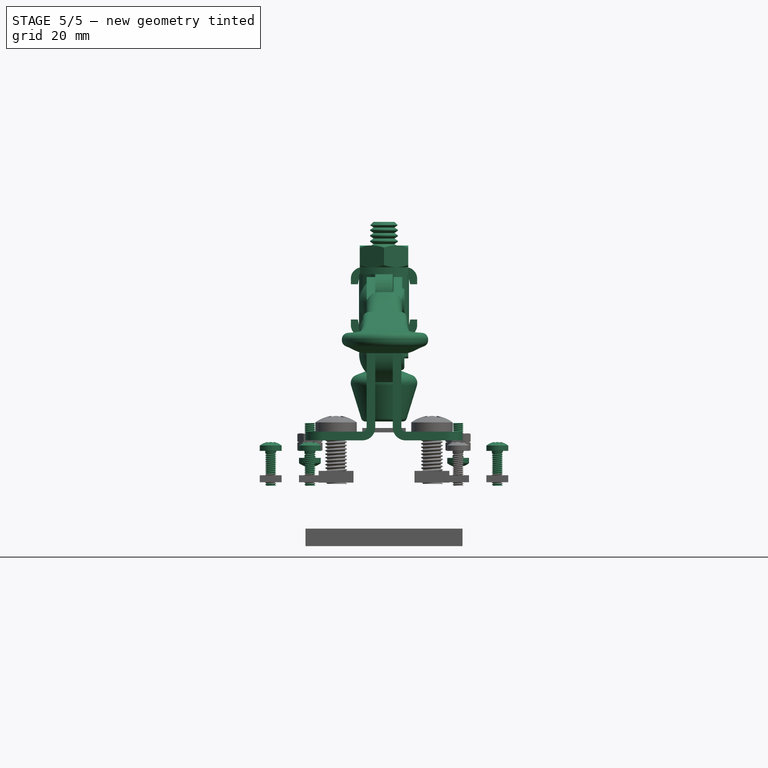
[diagram: stage 5 of 5 — front view after this stage's code; geometry added in this stage tinted green]
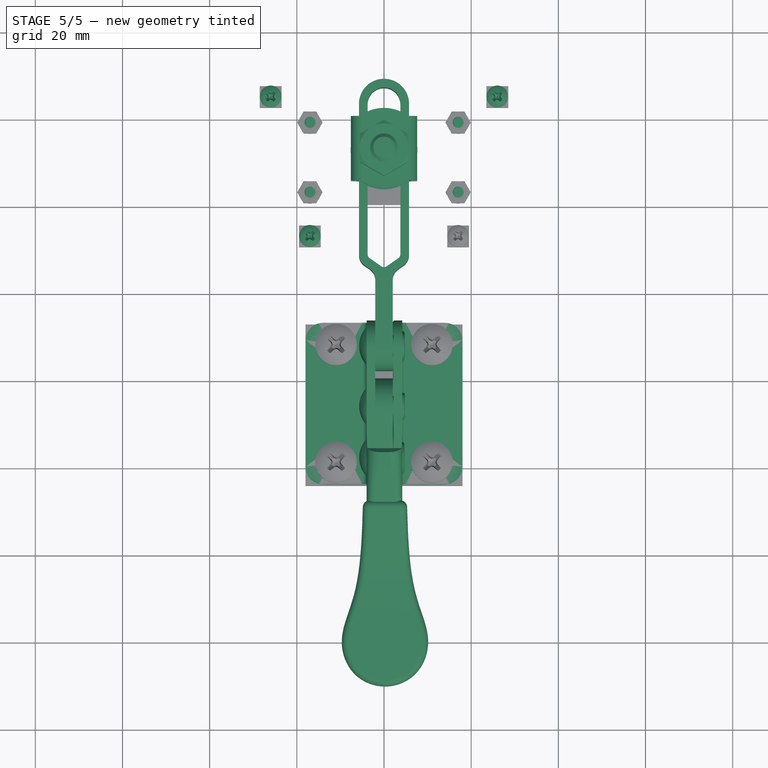
[diagram: stage 5 of 5 — top view after this stage's code; geometry added in this stage tinted green]
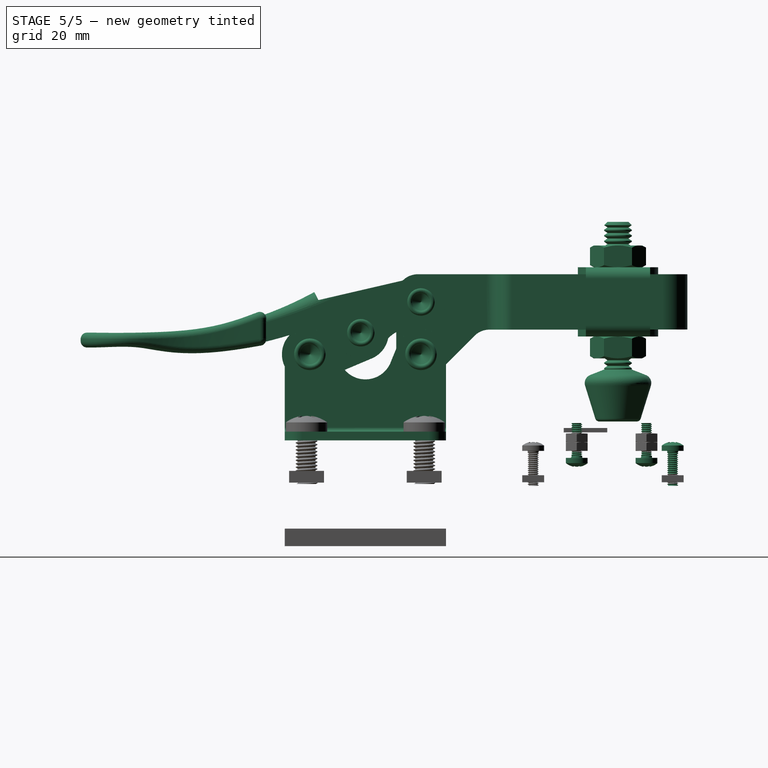
[diagram: stage 5 of 5 — right view after this stage's code; geometry added in this stage tinted green]
FEATURE [PartDesign::Body] Body
  Group = -> [Sketch,Pad,Sketch001,Pocket,Sketch002,Pocket001,Sketch003,Pocket002,Sketch004,Pocket003,Sketch005,Pocket004,Sketch006,Pocket005,Sketch007,Pocket006,Sketch008,Pocket007]
  Origin = -> Origin
  Tip = -> Pocket007
FEATURE [App::VRMLObject] jig
  Placement = pos=(-150,100,21.05) rot=(0,0,1;0rad)
  Resources = jig/shapes3D/Pin_Header_Straight_2x05_Pitch1.27mm_SMD.wrl | jig/shapes3D/Pin_Header_Straight_1x03_Pitch2.54mm.wrl | jig/shapes3D/Pin_Header_Straight_1x05_Pitch2.54mm.wrl | jig/shapes3D/Harwin-s13-503.wrl
  expr: Placement.Base.z = 20.25 + 1.6000000000000001 / 2
FEATURE [Part::FeaturePython] Screw  label="M2.5x8-Screw230"  # Fasteners workbench fastener (typed FeaturePython)
  Placement = pos=(-17,19,20.25) rot=(1,0,0;3.14159rad)
  diameter = 3
  invert = false
  length = 4
  matchOuter = false
  offset = 0
  thread = true
  type = 16
FEATURE [Part::FeaturePython] Screw001  label="M2.5x8-Screw"  # Fasteners workbench fastener (typed FeaturePython)
  Placement = pos=(17,19,20.25) rot=(1,0,0;3.14159rad)
  diameter = 3
  invert = false
  length = 4
  matchOuter = false
  offset = 0
  thread = true
  type = 16
FEATURE [Part::FeaturePython] Screw002  label="M2.5x8-Screw229"  # Fasteners workbench fastener (typed FeaturePython)
  Placement = pos=(-17,3,20.25) rot=(1,0,0;3.14159rad)
  diameter = 3
  invert = false
  length = 4
  matchOuter = false
  offset = 0
  thread = true
  type = 16
FEATURE [Part::FeaturePython] Screw003  label="M2.5x8-Screw228"  # Fasteners workbench fastener (typed FeaturePython)
  Placement = pos=(17,3,20.25) rot=(1,0,0;3.14159rad)
  diameter = 3
  invert = false
  length = 4
  matchOuter = false
  offset = 0
  thread = true
  type = 16
FEATURE [Part::FeaturePython] Screw004  label="M2.5x8-Screw231"  # Fasteners workbench fastener (typed FeaturePython)
  Placement = pos=(-26,25,21.85) rot=(0,0,1;0rad)
  diameter = 3
  invert = false
  length = 4
  matchOuter = false
  offset = 0
  thread = true
  type = 16
FEATURE [Part::FeaturePython] Screw005  label="M2.5x8-Screw226"  # Fasteners workbench fastener (typed FeaturePython)
  Placement = pos=(26,25,21.85) rot=(0,0,1;0rad)
  diameter = 3
  invert = false
  length = 4
  matchOuter = false
  offset = 0
  thread = true
  type = 16
FEATURE [Part::FeaturePython] Screw006  label="M2.5x8-Screw227"  # Fasteners workbench fastener (typed FeaturePython)
  Placement = pos=(-17,-7,21.85) rot=(0,0,1;0rad)
  diameter = 3
  invert = false
  length = 4
  matchOuter = false
  offset = 0
  thread = true
  type = 16
FEATURE [Part::Feature] Part__Feature  label="Part_37265"
  shape: bbox 4 x 25.3 x 18.56 mm, 12 faces (baked)
FEATURE [Part::Feature] Part__Feature001  label="Part_37264"
  shape: bbox 11.52 x 66.82 x 24.08 mm, 34 faces (baked)
FEATURE [Part::Feature] Part__Feature002  label="Part_37263"
  shape: bbox 16.03 x 37.03 x 26.63 mm, 28 faces (baked)
FEATURE [Part::Feature] Part__Feature003  label="Part_37262"
  shape: bbox 16.03 x 37.03 x 26.63 mm, 28 faces (baked)
FEATURE [Part::Feature] Part__Feature004  label="Part_134957"
  shape: bbox 168.2 x 180.7 x 118.2 mm, 45 faces (baked)
FEATURE [Part::Feature] Part__Feature005  label="Part_137325"
  shape: bbox 42.22 x 53.59 x 20.86 mm, 16 faces (baked)
FEATURE [Part::Feature] Part__Feature006  label="Rivets"
  shape: bbox 11.02 x 8.602 x 14.49 mm, 14 faces (baked)
FEATURE [Part::Feature] Part__Feature007  label="Rivets001"
  shape: bbox 11.02 x 8.602 x 14.49 mm, 14 faces (baked)
FEATURE [Part::Feature] Part__Feature008  label="Rivets002"
  shape: bbox 11.05 x 8.602 x 12.6 mm, 16 faces (baked)
FEATURE [Part::Feature] Part__Feature009  label="Rivets003"
  shape: bbox 11.05 x 8.602 x 12.6 mm, 16 faces (baked)
FEATURE [Part::Feature] Part__Feature010  label="Part_142967"
  shape: bbox 12.85 x 13.07 x 5.057 mm, 26 faces (baked)
FEATURE [Part::Feature] Part__Feature011  label="Part_144565"
  Placement = pos=(0,0,2) rot=(0,0,1;0rad)
  shape: bbox 6.354 x 6.354 x 34.26 mm, 162 faces (baked)
  expr: Placement.Base.z = Spreadsheet.ClampHeightOffset
FEATURE [Part::Feature] Part__Feature012  label="Part_144566"
  Placement = pos=(0,0,2) rot=(0,0,1;0rad)
  shape: bbox 15.75 x 31.51 x 12 mm, 10 faces (baked)
  expr: Placement.Base.z = Spreadsheet.ClampHeightOffset
FEATURE [Part::Feature] Part__Feature013  label="Part_145338"
  shape: bbox 15.2 x 19.21 x 3.9 mm, 21 faces (baked)
FEATURE [Part::Feature] Part__Feature014  label="Part_145433"
  shape: bbox 15.2 x 19.21 x 3.9 mm, 21 faces (baked)
FEATURE [Part::Feature] Part__Feature015  label="Part_145855"
  shape: bbox 12.85 x 13.07 x 5.057 mm, 26 faces (baked)
FEATURE [App::DocumentObjectGroup] Group  label="ClampOriginal"
  Group = -> [Part__Feature,Part__Feature001,Part__Feature002,Part__Feature003,Part__Feature004,Part__Feature005,Part__Feature006,Part__Feature007,Part__Feature008,Part__Feature009,Part__Feature010,Part__Feature011,Part__Feature012,Part__Feature013,Part__Feature014,Part__Feature015]
FEATURE [Part::Compound] Compound  label="ClampCompound"
  Links = -> [Part__Feature,Part__Feature006,Part__Feature010,Part__Feature007,Part__Feature003,Part__Feature002,Part__Feature011,Part__Feature012,Part__Feature001,Part__Feature004,Part__Feature013,Part__Feature008,Part__Feature009,Part__Feature005,Part__Feature015,Part__Feature014]
  Placement = pos=(-2,-45.5,44) rot=(0,0,1;3.14159rad)
  expr: Placement.Base.z = 40mm + Spreadsheet.ClampBaseHeight
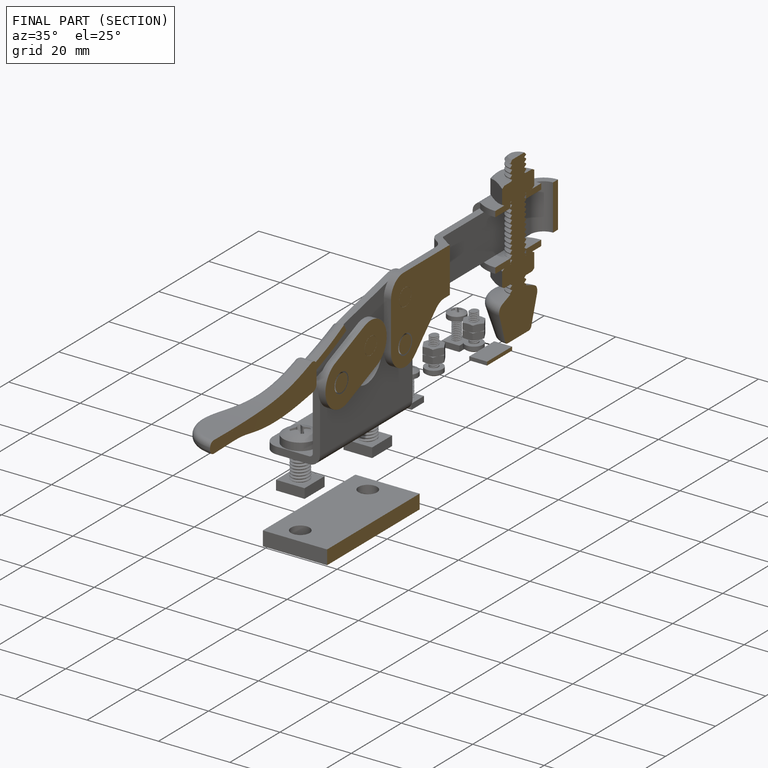
[diagram: finished part — half-section view (interior)]
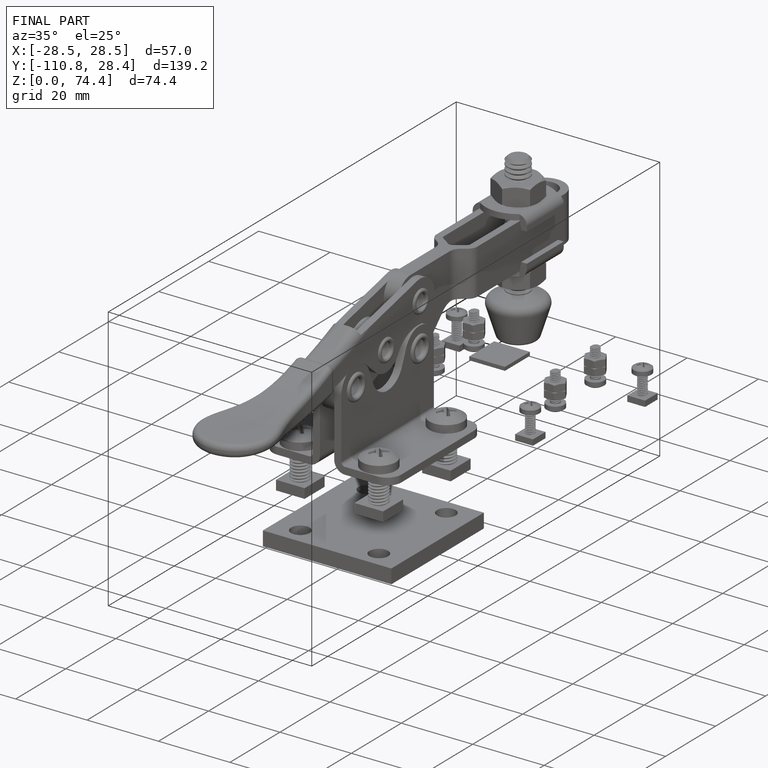
[diagram: finished part — iso view with bounding-box wireframe]
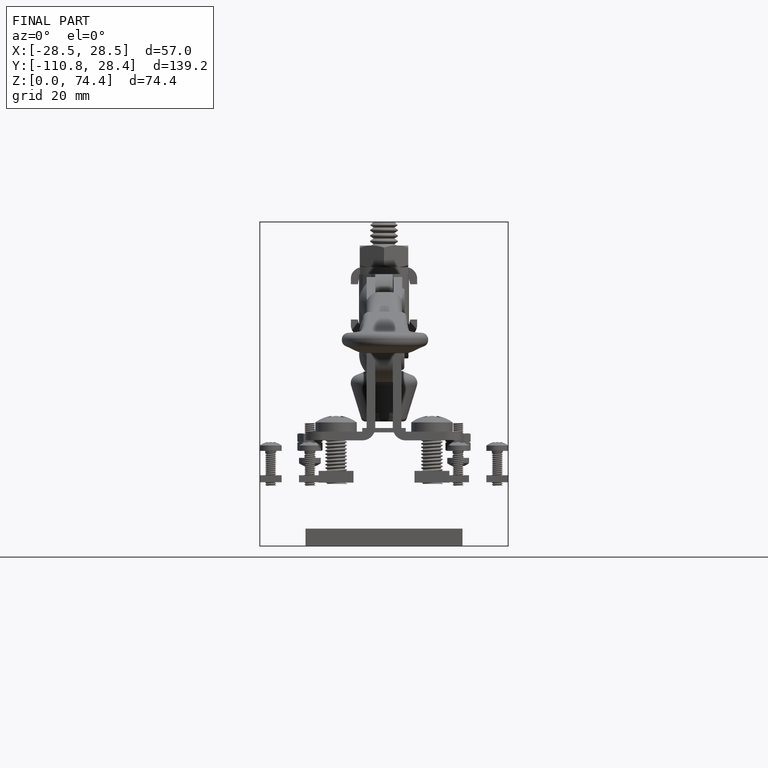
[diagram: finished part — front view with bounding-box wireframe]
